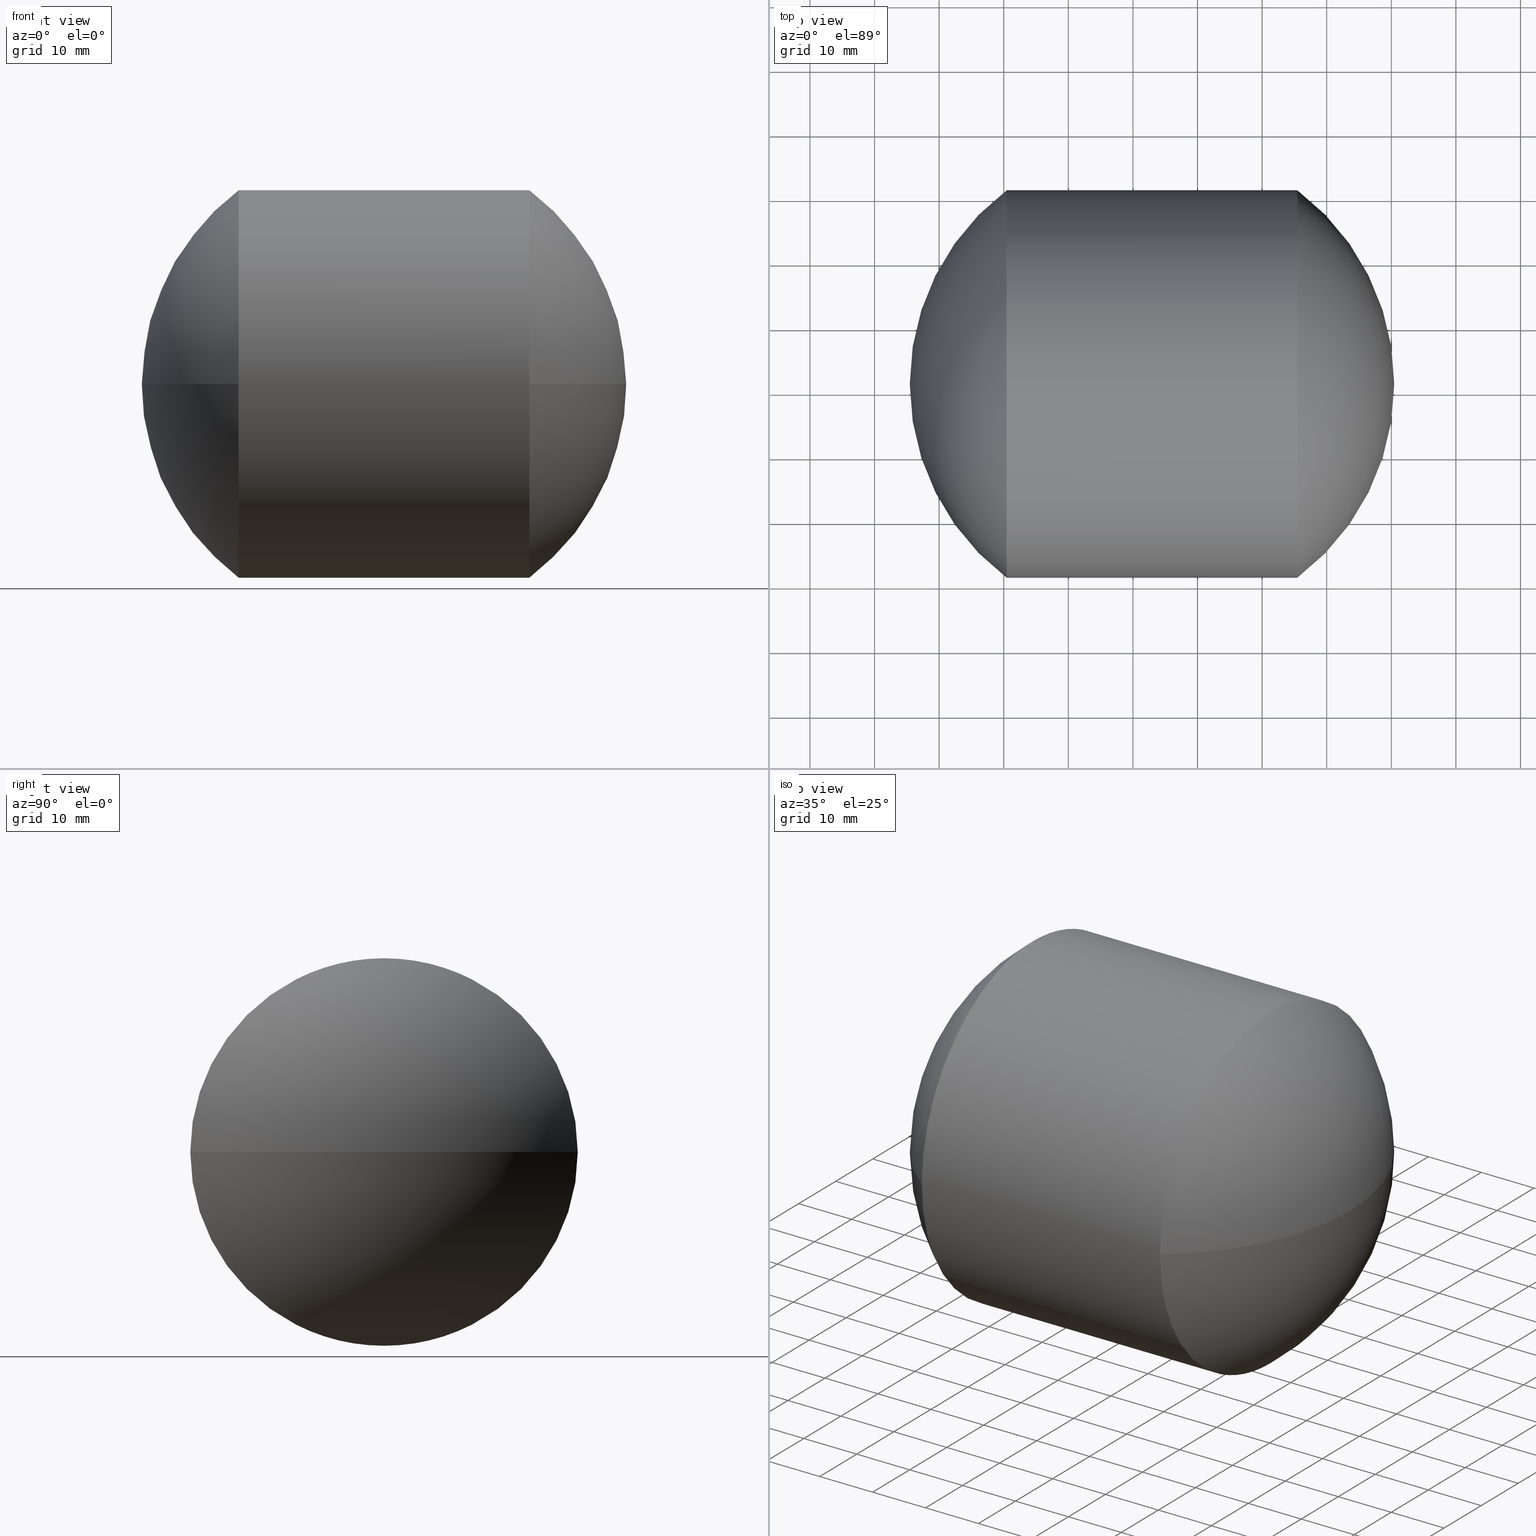
[diagram: canonical four-view strip — front | top / right | iso, engineering-drawing reading convention]
A machine part, canonical four-view strip (front | top / right | iso — engineering-drawing reading convention). The complete STEP part file that produces these views, byte-faithful:
ISO-10303-21;
HEADER;
FILE_DESCRIPTION (( 'STEP AP203' ),
    '1' );
FILE_NAME ('165003.STEP',
    '2019-06-04T02:15:53',
    ( '' ),
    ( '' ),
    'SwSTEP 2.0',
    'SolidWorks 2016',
    '' );
FILE_SCHEMA (( 'CONFIG_CONTROL_DESIGN' ));
ENDSEC;

DATA;
#1 = DIRECTION ( 'NONE',  ( -1.000000000000000000, -0.0000000000000000000, -0.0000000000000000000 ) ) ;
#2 = PRODUCT_DEFINITION_FORMATION_WITH_SPECIFIED_SOURCE ( '�κ�', '', #93, .NOT_KNOWN. ) ;
#3 = PERSON_AND_ORGANIZATION_ROLE ( 'design_owner' ) ;
#4 = PERSON_AND_ORGANIZATION_ROLE ( 'creator' ) ;
#5 = ADVANCED_FACE ( 'NONE', ( #49 ), #316, .T. ) ;
#6 = AXIS2_PLACEMENT_3D ( 'NONE', #30, #64, #172 ) ;
#7 = CARTESIAN_POINT ( 'NONE',  ( 3432.954240111852900, 1941.195797396160300, 0.0000000000000000000 ) ) ;
#8 =( LENGTH_UNIT ( ) NAMED_UNIT ( * ) SI_UNIT ( .MILLI., .METRE. ) );
#9 = CARTESIAN_POINT ( 'NONE',  ( 3432.954240111852900, 1941.195797396160300, 0.0000000000000000000 ) ) ;
#10 = COORDINATED_UNIVERSAL_TIME_OFFSET ( 8, 0, .AHEAD. ) ;
#11 = DATE_AND_TIME ( #337, #133 ) ;
#12 = CC_DESIGN_APPROVAL ( #207, ( #85 ) ) ;
#13 = DIRECTION ( 'NONE',  ( 0.0000000000000000000, 0.0000000000000000000, 1.000000000000000000 ) ) ;
#14 = AXIS2_PLACEMENT_3D ( 'NONE', #259, #210, #273 ) ;
#15 = COORDINATED_UNIVERSAL_TIME_OFFSET ( 8, 0, .AHEAD. ) ;
#16 = EDGE_CURVE ( 'NONE', #103, #60, #129, .T. ) ;
#17 = VERTEX_POINT ( 'NONE', #135 ) ;
#18 = ORIENTED_EDGE ( 'NONE', *, *, #190, .F. ) ;
#19 = COORDINATED_UNIVERSAL_TIME_OFFSET ( 8, 0, .AHEAD. ) ;
#20 = CC_DESIGN_DATE_AND_TIME_ASSIGNMENT ( #44, #29, ( #85 ) ) ;
#21 = EDGE_LOOP ( 'NONE', ( #310, #291, #215, #55 ) ) ;
#22 = DATE_AND_TIME ( #109, #223 ) ;
#23 = LOCAL_TIME ( 10, 15, 53.00000000000000000, #292 ) ;
#24 = CARTESIAN_POINT ( 'NONE',  ( 3410.456490111853300, 1941.195797396160300, -29.99699999999982900 ) ) ;
#25 = CIRCLE ( 'NONE', #48, 29.99700000001004300 ) ;
#26 = CARTESIAN_POINT ( 'NONE',  ( 3389.118758004791700, 1941.195797396160300, 29.99700000000493800 ) ) ;
#27 = APPROVAL_DATE_TIME ( #154, #188 ) ;
#28 = APPROVAL ( #274, 'δָ��' ) ;
#29 = DATE_TIME_ROLE ( 'classification_date' ) ;
#30 = CARTESIAN_POINT ( 'NONE',  ( 3410.456490111853300, 1941.195797396160300, 0.0000000000000000000 ) ) ;
#31 =( NAMED_UNIT ( * ) PLANE_ANGLE_UNIT ( ) SI_UNIT ( $, .RADIAN. ) );
#32 = CARTESIAN_POINT ( 'NONE',  ( 3432.954240111852900, 1941.195797396160300, 0.0000000000000000000 ) ) ;
#33 = CARTESIAN_POINT ( 'NONE',  ( 3455.451990111839700, 1941.195797396160300, 0.0000000000000000000 ) ) ;
#34 = DIRECTION ( 'NONE',  ( -0.0000000000000000000, 0.0000000000000000000, -1.000000000000000000 ) ) ;
#35 = ADVANCED_FACE ( 'NONE', ( #158 ), #104, .T. ) ;
#36 = PERSON_AND_ORGANIZATION_ROLE ( 'classification_officer' ) ;
#37 = DATE_TIME_ROLE ( 'creation_date' ) ;
#38 = ORIENTED_EDGE ( 'NONE', *, *, #208, .T. ) ;
#39 = DIRECTION ( 'NONE',  ( 0.0000000000000000000, 1.224646799147353200E-016, -1.000000000000000000 ) ) ;
#40 = VECTOR ( 'NONE', #1, 1000.000000000000000 ) ;
#41 = DESIGN_CONTEXT ( 'detailed design', #42, 'design' ) ;
#42 = APPLICATION_CONTEXT ( 'configuration controlled 3d designs of mechanical parts and assemblies' ) ;
#43 = PERSON_AND_ORGANIZATION ( #67, #224 ) ;
#44 = DATE_AND_TIME ( #256, #317 ) ;
#45 = DIRECTION ( 'NONE',  ( 0.0000000000000000000, 0.0000000000000000000, 1.000000000000000000 ) ) ;
#46 = ORIENTED_EDGE ( 'NONE', *, *, #107, .T. ) ;
#47 = CC_DESIGN_PERSON_AND_ORGANIZATION_ASSIGNMENT ( #58, #88, ( #85 ) ) ;
#48 = AXIS2_PLACEMENT_3D ( 'NONE', #290, #341, #239 ) ;
#49 = FACE_OUTER_BOUND ( 'NONE', #236, .T. ) ;
#50 = PERSON_AND_ORGANIZATION ( #67, #224 ) ;
#51 = COORDINATED_UNIVERSAL_TIME_OFFSET ( 8, 0, .AHEAD. ) ;
#52 = CC_DESIGN_PERSON_AND_ORGANIZATION_ASSIGNMENT ( #313, #36, ( #338 ) ) ;
#53 = ORIENTED_EDGE ( 'NONE', *, *, #165, .T. ) ;
#54 = VECTOR ( 'NONE', #320, 1000.000000000000000 ) ;
#55 = ORIENTED_EDGE ( 'NONE', *, *, #111, .F. ) ;
#56 = AXIS2_PLACEMENT_3D ( 'NONE', #255, #185, #257 ) ;
#57 = EDGE_CURVE ( 'NONE', #334, #108, #25, .T. ) ;
#58 = PERSON_AND_ORGANIZATION ( #67, #224 ) ;
#59 = DIRECTION ( 'NONE',  ( -0.0000000000000000000, 0.0000000000000000000, 1.000000000000000000 ) ) ;
#60 = VERTEX_POINT ( 'NONE', #87 ) ;
#61 = DIRECTION ( 'NONE',  ( 0.0000000000000000000, 1.000000000000000000, 1.224646799147354700E-016 ) ) ;
#62 = SHAPE_DEFINITION_REPRESENTATION ( #312, #164 ) ;
#63 = DIRECTION ( 'NONE',  ( 0.0000000000000000000, 0.0000000000000000000, 1.000000000000000000 ) ) ;
#64 = DIRECTION ( 'NONE',  ( -1.000000000000000000, -0.0000000000000000000, -0.0000000000000000000 ) ) ;
#65 = APPROVAL_ROLE ( '' ) ;
#66 = DIRECTION ( 'NONE',  ( -0.0000000000000000000, 0.0000000000000000000, -1.000000000000000000 ) ) ;
#67 = PERSON ( 'δָ��', 'δָ��', 'δָ��', ('δָ��'), ('δָ��'), ('δָ��') ) ;
#68 = MECHANICAL_CONTEXT ( 'NONE', #242, 'mechanical' ) ;
#69 = AXIS2_PLACEMENT_3D ( 'NONE', #80, #59, #193 ) ;
#70 = APPROVAL_ROLE ( '' ) ;
#71 = PERSON_AND_ORGANIZATION ( #67, #224 ) ;
#72 = DIRECTION ( 'NONE',  ( 0.0000000000000000000, 1.000000000000000000, 1.224646799147350200E-016 ) ) ;
#73 =( NAMED_UNIT ( * ) SI_UNIT ( $, .STERADIAN. ) SOLID_ANGLE_UNIT ( ) );
#74 = CARTESIAN_POINT ( 'NONE',  ( 3410.456490111853300, 1941.195797396160300, 29.99699999999982900 ) ) ;
#75 = APPROVAL ( #230, 'δָ��' ) ;
#76 = AXIS2_PLACEMENT_3D ( 'NONE', #7, #205, #139 ) ;
#77 = APPROVAL_PERSON_ORGANIZATION ( #159, #318, #175 ) ;
#78 = APPROVAL_PERSON_ORGANIZATION ( #147, #270, #65 ) ;
#79 = AXIS2_PLACEMENT_3D ( 'NONE', #238, #225, #61 ) ;
#80 = CARTESIAN_POINT ( 'NONE',  ( 3432.954240111852900, 1941.195797396160300, 0.0000000000000000000 ) ) ;
#81 = CIRCLE ( 'NONE', #218, 29.99700000001004300 ) ;
#82 = CALENDAR_DATE ( 2019, 4, 6 ) ;
#83 = PERSON_AND_ORGANIZATION ( #67, #224 ) ;
#84 = DIRECTION ( 'NONE',  ( -0.0000000000000000000, 0.0000000000000000000, -1.000000000000000000 ) ) ;
#85 = SECURITY_CLASSIFICATION ( '', '', #227 ) ;
#86 = PERSON_AND_ORGANIZATION_ROLE ( 'creator' ) ;
#87 = CARTESIAN_POINT ( 'NONE',  ( 3455.451990111839700, 1971.192797396170400, 0.0000000000000000000 ) ) ;
#88 = PERSON_AND_ORGANIZATION_ROLE ( 'classification_officer' ) ;
#89 = FACE_OUTER_BOUND ( 'NONE', #97, .T. ) ;
#90 = EDGE_LOOP ( 'NONE', ( #271, #209, #53, #187 ) ) ;
#91 = CC_DESIGN_PERSON_AND_ORGANIZATION_ASSIGNMENT ( #194, #345, ( #93 ) ) ;
#92 = DATE_AND_TIME ( #189, #23 ) ;
#93 = PRODUCT ( '165003', '165003', '', ( #68 ) ) ;
#94 = DATE_TIME_ROLE ( 'classification_date' ) ;
#95 = CARTESIAN_POINT ( 'NONE',  ( 3410.456490111853300, 1911.198797396160400, -3.673573003402300800E-015 ) ) ;
#96 = ORIENTED_EDGE ( 'NONE', *, *, #308, .T. ) ;
#97 = EDGE_LOOP ( 'NONE', ( #251, #116, #240, #115, #121, #181 ) ) ;
#98 = VERTEX_POINT ( 'NONE', #24 ) ;
#99 = DATE_AND_TIME ( #263, #311 ) ;
#100 = UNCERTAINTY_MEASURE_WITH_UNIT (LENGTH_MEASURE( 1.000000000000000100E-005 ), #8, 'distance_accuracy_value', 'NONE');
#101 = AXIS2_PLACEMENT_3D ( 'NONE', #33, #237, #174 ) ;
#102 = CIRCLE ( 'NONE', #122, 29.99699999999982900 ) ;
#103 = VERTEX_POINT ( 'NONE', #195 ) ;
#104 = CYLINDRICAL_SURFACE ( 'NONE', #157, 29.99700000000493800 ) ;
#105 = PRODUCT_DEFINITION ( 'δ֪', '', #331, #336 ) ;
#106 = ORIENTED_EDGE ( 'NONE', *, *, #110, .T. ) ;
#107 = EDGE_CURVE ( 'NONE', #330, #167, #136, .T. ) ;
#108 = VERTEX_POINT ( 'NONE', #340 ) ;
#109 = CALENDAR_DATE ( 2019, 4, 6 ) ;
#110 = EDGE_CURVE ( 'NONE', #279, #284, #275, .T. ) ;
#111 = EDGE_CURVE ( 'NONE', #60, #334, #81, .T. ) ;
#112 = DIRECTION ( 'NONE',  ( -1.000000000000000000, -0.0000000000000000000, -0.0000000000000000000 ) ) ;
#113 = PERSON_AND_ORGANIZATION ( #67, #224 ) ;
#114 = COORDINATED_UNIVERSAL_TIME_OFFSET ( 8, 0, .AHEAD. ) ;
#115 = ORIENTED_EDGE ( 'NONE', *, *, #165, .F. ) ;
#116 = ORIENTED_EDGE ( 'NONE', *, *, #339, .T. ) ;
#117 = DIRECTION ( 'NONE',  ( -1.000000000000000000, -0.0000000000000000000, -0.0000000000000000000 ) ) ;
#118 = APPLICATION_PROTOCOL_DEFINITION ( 'international standard', 'config_control_design', 1994, #242 ) ;
#119 = CARTESIAN_POINT ( 'NONE',  ( 3455.451990111839700, 1941.195797396160300, 0.0000000000000000000 ) ) ;
#120 = PERSON_AND_ORGANIZATION_ROLE ( 'creator' ) ;
#121 = ORIENTED_EDGE ( 'NONE', *, *, #110, .F. ) ;
#122 = AXIS2_PLACEMENT_3D ( 'NONE', #304, #306, #153 ) ;
#123 = CARTESIAN_POINT ( 'NONE',  ( 0.0000000000000000000, 0.0000000000000000000, 0.0000000000000000000 ) ) ;
#124 = DIRECTION ( 'NONE',  ( -0.0000000000000000000, 0.0000000000000000000, 1.000000000000000000 ) ) ;
#125 = FACE_OUTER_BOUND ( 'NONE', #288, .T. ) ;
#126 = CC_DESIGN_DATE_AND_TIME_ASSIGNMENT ( #22, #94, ( #338 ) ) ;
#127 = LOCAL_TIME ( 10, 15, 53.00000000000000000, #294 ) ;
#128 = AXIS2_PLACEMENT_3D ( 'NONE', #9, #124, #278 ) ;
#129 = CIRCLE ( 'NONE', #69, 37.49625000000023100 ) ;
#130 = APPROVAL_PERSON_ORGANIZATION ( #305, #207, #173 ) ;
#131 = PERSON_AND_ORGANIZATION ( #67, #224 ) ;
#132 = ORIENTED_EDGE ( 'NONE', *, *, #208, .F. ) ;
#133 = LOCAL_TIME ( 10, 15, 53.00000000000000000, #19 ) ;
#134 = AXIS2_PLACEMENT_3D ( 'NONE', #150, #34, #329 ) ;
#135 = CARTESIAN_POINT ( 'NONE',  ( 3410.456490111853300, 1971.192797396160100, 0.0000000000000000000 ) ) ;
#136 = CIRCLE ( 'NONE', #79, 37.49624999999956300 ) ;
#137 = CC_DESIGN_APPROVAL ( #75, ( #338 ) ) ;
#138 = APPROVAL_STATUS ( 'not_yet_approved' ) ;
#139 = DIRECTION ( 'NONE',  ( 0.0000000000000000000, 1.000000000000000000, 0.0000000000000000000 ) ) ;
#140 = DIRECTION ( 'NONE',  ( 0.0000000000000000000, 1.000000000000000000, 0.0000000000000000000 ) ) ;
#141 = AXIS2_PLACEMENT_3D ( 'NONE', #301, #146, #327 ) ;
#142 = CARTESIAN_POINT ( 'NONE',  ( 3455.451990111839700, 1941.195797396160300, -29.99700000001004300 ) ) ;
#143 = SPHERICAL_SURFACE ( 'NONE', #213, 37.49625000000013800 ) ;
#144 = PRODUCT ( '165003', '165003', '', ( #325 ) ) ;
#145 = LOCAL_TIME ( 10, 15, 53.00000000000000000, #184 ) ;
#146 = DIRECTION ( 'NONE',  ( 0.0000000000000000000, 0.0000000000000000000, 1.000000000000000000 ) ) ;
#147 = PERSON_AND_ORGANIZATION ( #67, #224 ) ;
#148 = ADVANCED_FACE ( 'NONE', ( #182 ), #143, .T. ) ;
#149 = DIRECTION ( 'NONE',  ( 1.000000000000000000, 0.0000000000000000000, 0.0000000000000000000 ) ) ;
#150 = CARTESIAN_POINT ( 'NONE',  ( 3432.954240111852900, 1941.195797396160300, 0.0000000000000000000 ) ) ;
#151 = CARTESIAN_POINT ( 'NONE',  ( 3455.451990111839700, 1941.195797396160300, 29.99700000001004300 ) ) ;
#152 = CIRCLE ( 'NONE', #162, 29.99699999999982900 ) ;
#153 = DIRECTION ( 'NONE',  ( 0.0000000000000000000, 0.0000000000000000000, 1.000000000000000000 ) ) ;
#154 = DATE_AND_TIME ( #198, #266 ) ;
#155 = LINE ( 'NONE', #204, #54 ) ;
#156 = ORIENTED_EDGE ( 'NONE', *, *, #16, .T. ) ;
#157 = AXIS2_PLACEMENT_3D ( 'NONE', #342, #112, #166 ) ;
#158 = FACE_OUTER_BOUND ( 'NONE', #309, .T. ) ;
#159 = PERSON_AND_ORGANIZATION ( #67, #224 ) ;
#160 = CC_DESIGN_SECURITY_CLASSIFICATION ( #338, ( #331 ) ) ;
#161 = FACE_OUTER_BOUND ( 'NONE', #90, .T. ) ;
#162 = AXIS2_PLACEMENT_3D ( 'NONE', #244, #117, #13 ) ;
#163 = PRODUCT_DEFINITION_SHAPE ( 'NONE', 'NONE',  #268 ) ;
#164 = ADVANCED_BREP_SHAPE_REPRESENTATION ( '165003', ( #229, #141 ), #179 ) ;
#165 = EDGE_CURVE ( 'NONE', #284, #17, #152, .T. ) ;
#166 = DIRECTION ( 'NONE',  ( 0.0000000000000000000, 0.0000000000000000000, 1.000000000000000000 ) ) ;
#167 = VERTEX_POINT ( 'NONE', #183 ) ;
#168 = APPROVAL_DATE_TIME ( #99, #207 ) ;
#169 = EDGE_CURVE ( 'NONE', #103, #108, #285, .T. ) ;
#170 = DIRECTION ( 'NONE',  ( 0.0000000000000000000, 1.000000000000000000, 0.0000000000000000000 ) ) ;
#171 = PERSON_AND_ORGANIZATION_ROLE ( 'creator' ) ;
#172 = DIRECTION ( 'NONE',  ( 0.0000000000000000000, 0.0000000000000000000, 1.000000000000000000 ) ) ;
#173 = APPROVAL_ROLE ( '' ) ;
#174 = DIRECTION ( 'NONE',  ( 0.0000000000000000000, 0.0000000000000000000, 1.000000000000000000 ) ) ;
#175 = APPROVAL_ROLE ( '' ) ;
#176 = APPROVAL_ROLE ( '' ) ;
#177 = ADVANCED_FACE ( 'NONE', ( #161 ), #221, .T. ) ;
#178 = CIRCLE ( 'NONE', #6, 29.99699999999982900 ) ;
#179 =( GEOMETRIC_REPRESENTATION_CONTEXT ( 3 ) GLOBAL_UNCERTAINTY_ASSIGNED_CONTEXT ( ( #100 ) ) GLOBAL_UNIT_ASSIGNED_CONTEXT ( ( #8, #31, #73 ) ) REPRESENTATION_CONTEXT ( 'NONE', 'WORKASPACE' ) );
#180 = APPROVAL_STATUS ( 'not_yet_approved' ) ;
#181 = ORIENTED_EDGE ( 'NONE', *, *, #252, .T. ) ;
#182 = FACE_OUTER_BOUND ( 'NONE', #21, .T. ) ;
#183 = CARTESIAN_POINT ( 'NONE',  ( 3395.457990111852700, 1941.195797396160300, 0.0000000000000000000 ) ) ;
#184 = COORDINATED_UNIVERSAL_TIME_OFFSET ( 8, 0, .AHEAD. ) ;
#185 = DIRECTION ( 'NONE',  ( -1.000000000000000000, -0.0000000000000000000, -0.0000000000000000000 ) ) ;
#186 = CC_DESIGN_PERSON_AND_ORGANIZATION_ASSIGNMENT ( #113, #4, ( #331 ) ) ;
#187 = ORIENTED_EDGE ( 'NONE', *, *, #319, .T. ) ;
#188 = APPROVAL ( #180, 'δָ��' ) ;
#189 = CALENDAR_DATE ( 2019, 4, 6 ) ;
#190 = EDGE_CURVE ( 'NONE', #330, #284, #178, .T. ) ;
#191 = AXIS2_PLACEMENT_3D ( 'NONE', #123, #63, #149 ) ;
#192 = DATE_AND_TIME ( #315, #277 ) ;
#193 = DIRECTION ( 'NONE',  ( 1.000000000000000000, 0.0000000000000000000, 0.0000000000000000000 ) ) ;
#194 = PERSON_AND_ORGANIZATION ( #67, #224 ) ;
#195 = CARTESIAN_POINT ( 'NONE',  ( 3470.450490111853000, 1941.195797396160300, 0.0000000000000000000 ) ) ;
#196 = ORIENTED_EDGE ( 'NONE', *, *, #269, .F. ) ;
#197 = PRODUCT_RELATED_PRODUCT_CATEGORY ( 'detail', '', ( #144 ) ) ;
#198 = CALENDAR_DATE ( 2019, 4, 6 ) ;
#199 = PERSON_AND_ORGANIZATION_ROLE ( 'design_supplier' ) ;
#200 = APPLICATION_CONTEXT ( 'configuration controlled 3d designs of mechanical parts and assemblies' ) ;
#201 = DIRECTION ( 'NONE',  ( 0.0000000000000000000, 0.0000000000000000000, 1.000000000000000000 ) ) ;
#202 = CC_DESIGN_PERSON_AND_ORGANIZATION_ASSIGNMENT ( #83, #86, ( #268 ) ) ;
#203 = PERSON_AND_ORGANIZATION_ROLE ( 'design_supplier' ) ;
#204 = CARTESIAN_POINT ( 'NONE',  ( 3389.118758004791700, 1941.195797396160300, -29.99700000000493800 ) ) ;
#205 = DIRECTION ( 'NONE',  ( -0.0000000000000000000, 0.0000000000000000000, -1.000000000000000000 ) ) ;
#206 = DIRECTION ( 'NONE',  ( -1.000000000000000000, -0.0000000000000000000, -0.0000000000000000000 ) ) ;
#207 = APPROVAL ( #226, 'δָ��' ) ;
#208 = EDGE_CURVE ( 'NONE', #108, #279, #262, .T. ) ;
#209 = ORIENTED_EDGE ( 'NONE', *, *, #190, .T. ) ;
#210 = DIRECTION ( 'NONE',  ( -1.000000000000000000, -0.0000000000000000000, -0.0000000000000000000 ) ) ;
#211 = SPHERICAL_SURFACE ( 'NONE', #76, 37.49625000000013800 ) ;
#212 = APPROVAL_DATE_TIME ( #192, #318 ) ;
#213 = AXIS2_PLACEMENT_3D ( 'NONE', #32, #66, #140 ) ;
#214 = ORIENTED_EDGE ( 'NONE', *, *, #169, .F. ) ;
#215 = ORIENTED_EDGE ( 'NONE', *, *, #57, .F. ) ;
#216 = CC_DESIGN_PERSON_AND_ORGANIZATION_ASSIGNMENT ( #343, #120, ( #105 ) ) ;
#217 = ORIENTED_EDGE ( 'NONE', *, *, #339, .F. ) ;
#218 = AXIS2_PLACEMENT_3D ( 'NONE', #119, #296, #201 ) ;
#219 = APPROVAL_PERSON_ORGANIZATION ( #297, #75, #70 ) ;
#220 = APPROVAL_PERSON_ORGANIZATION ( #282, #28, #176 ) ;
#221 = SPHERICAL_SURFACE ( 'NONE', #134, 37.49624999999960600 ) ;
#222 = PRODUCT_RELATED_PRODUCT_CATEGORY ( 'detail', '', ( #93 ) ) ;
#223 = LOCAL_TIME ( 10, 15, 53.00000000000000000, #287 ) ;
#224 = ORGANIZATION ( 'δָ��', 'δָ��', '' ) ;
#225 = DIRECTION ( 'NONE',  ( 0.0000000000000000000, 1.224646799147353200E-016, -1.000000000000000000 ) ) ;
#226 = APPROVAL_STATUS ( 'not_yet_approved' ) ;
#227 = SECURITY_CLASSIFICATION_LEVEL ( 'unclassified' ) ;
#228 = ORIENTED_EDGE ( 'NONE', *, *, #252, .F. ) ;
#229 = MANIFOLD_SOLID_BREP ( '��ת1', #333 ) ;
#230 = APPROVAL_STATUS ( 'not_yet_approved' ) ;
#231 = CARTESIAN_POINT ( 'NONE',  ( 3410.456490111853300, 1941.195797396160300, 0.0000000000000000000 ) ) ;
#232 = CC_DESIGN_PERSON_AND_ORGANIZATION_ASSIGNMENT ( #71, #199, ( #2 ) ) ;
#233 = AXIS2_PLACEMENT_3D ( 'NONE', #231, #206, #45 ) ;
#234 = ORIENTED_EDGE ( 'NONE', *, *, #319, .F. ) ;
#235 = CC_DESIGN_PERSON_AND_ORGANIZATION_ASSIGNMENT ( #50, #3, ( #144 ) ) ;
#236 = EDGE_LOOP ( 'NONE', ( #96, #241, #46, #234 ) ) ;
#237 = DIRECTION ( 'NONE',  ( -1.000000000000000000, -0.0000000000000000000, -0.0000000000000000000 ) ) ;
#238 = CARTESIAN_POINT ( 'NONE',  ( 3432.954240111852900, 1941.195797396160300, 0.0000000000000000000 ) ) ;
#239 = DIRECTION ( 'NONE',  ( 0.0000000000000000000, 0.0000000000000000000, 1.000000000000000000 ) ) ;
#240 = ORIENTED_EDGE ( 'NONE', *, *, #308, .F. ) ;
#241 = ORIENTED_EDGE ( 'NONE', *, *, #269, .T. ) ;
#242 = APPLICATION_CONTEXT ( 'configuration controlled 3d designs of mechanical parts and assemblies' ) ;
#243 = LOCAL_TIME ( 10, 15, 53.00000000000000000, #15 ) ;
#244 = CARTESIAN_POINT ( 'NONE',  ( 3410.456490111853300, 1941.195797396160300, 0.0000000000000000000 ) ) ;
#245 = APPLICATION_PROTOCOL_DEFINITION ( 'international standard', 'config_control_design', 1994, #200 ) ;
#246 = CC_DESIGN_DATE_AND_TIME_ASSIGNMENT ( #283, #37, ( #268 ) ) ;
#247 = SECURITY_CLASSIFICATION_LEVEL ( 'unclassified' ) ;
#248 = CARTESIAN_POINT ( 'NONE',  ( 3432.954240111852900, 1941.195797396160300, 0.0000000000000000000 ) ) ;
#249 = CIRCLE ( 'NONE', #101, 29.99700000001004300 ) ;
#250 = APPLICATION_CONTEXT ( 'configuration controlled 3d designs of mechanical parts and assemblies' ) ;
#251 = ORIENTED_EDGE ( 'NONE', *, *, #111, .T. ) ;
#252 = EDGE_CURVE ( 'NONE', #279, #60, #249, .T. ) ;
#253 = CALENDAR_DATE ( 2019, 4, 6 ) ;
#254 = DATE_AND_TIME ( #82, #145 ) ;
#255 = CARTESIAN_POINT ( 'NONE',  ( 3389.118758004791700, 1941.195797396160300, 0.0000000000000000000 ) ) ;
#256 = CALENDAR_DATE ( 2019, 4, 6 ) ;
#257 = DIRECTION ( 'NONE',  ( 0.0000000000000000000, 0.0000000000000000000, 1.000000000000000000 ) ) ;
#258 = CC_DESIGN_PERSON_AND_ORGANIZATION_ASSIGNMENT ( #328, #171, ( #2 ) ) ;
#259 = CARTESIAN_POINT ( 'NONE',  ( 3455.451990111839700, 1941.195797396160300, 0.0000000000000000000 ) ) ;
#260 = DATE_AND_TIME ( #253, #243 ) ;
#261 = CALENDAR_DATE ( 2019, 4, 6 ) ;
#262 = CIRCLE ( 'NONE', #14, 29.99700000001004300 ) ;
#263 = CALENDAR_DATE ( 2019, 4, 6 ) ;
#264 = APPROVAL_PERSON_ORGANIZATION ( #131, #188, #272 ) ;
#265 = CYLINDRICAL_SURFACE ( 'NONE', #56, 29.99700000000493800 ) ;
#266 = LOCAL_TIME ( 10, 15, 53.00000000000000000, #114 ) ;
#267 = CC_DESIGN_DATE_AND_TIME_ASSIGNMENT ( #254, #299, ( #105 ) ) ;
#268 = PRODUCT_DEFINITION ( 'δ֪', '', #2, #41 ) ;
#269 = EDGE_CURVE ( 'NONE', #98, #330, #102, .T. ) ;
#270 = APPROVAL ( #138, 'δָ��' ) ;
#271 = ORIENTED_EDGE ( 'NONE', *, *, #107, .F. ) ;
#272 = APPROVAL_ROLE ( '' ) ;
#273 = DIRECTION ( 'NONE',  ( 0.0000000000000000000, 0.0000000000000000000, 1.000000000000000000 ) ) ;
#274 = APPROVAL_STATUS ( 'not_yet_approved' ) ;
#275 = LINE ( 'NONE', #26, #40 ) ;
#276 = APPLICATION_PROTOCOL_DEFINITION ( 'international standard', 'config_control_design', 1994, #250 ) ;
#277 = LOCAL_TIME ( 10, 15, 53.00000000000000000, #10 ) ;
#278 = DIRECTION ( 'NONE',  ( 1.000000000000000000, 0.0000000000000000000, 0.0000000000000000000 ) ) ;
#279 = VERTEX_POINT ( 'NONE', #151 ) ;
#280 = CC_DESIGN_SECURITY_CLASSIFICATION ( #85, ( #2 ) ) ;
#281 = AXIS2_PLACEMENT_3D ( 'NONE', #293, #84, #170 ) ;
#282 = PERSON_AND_ORGANIZATION ( #67, #224 ) ;
#283 = DATE_AND_TIME ( #261, #127 ) ;
#284 = VERTEX_POINT ( 'NONE', #74 ) ;
#285 = CIRCLE ( 'NONE', #300, 37.49625000000023100 ) ;
#286 = CC_DESIGN_APPROVAL ( #28, ( #105 ) ) ;
#287 = COORDINATED_UNIVERSAL_TIME_OFFSET ( 8, 0, .AHEAD. ) ;
#288 = EDGE_LOOP ( 'NONE', ( #214, #156, #228, #132 ) ) ;
#289 = APPROVAL_DATE_TIME ( #260, #75 ) ;
#290 = CARTESIAN_POINT ( 'NONE',  ( 3455.451990111839700, 1941.195797396160300, 0.0000000000000000000 ) ) ;
#291 = ORIENTED_EDGE ( 'NONE', *, *, #169, .T. ) ;
#292 = COORDINATED_UNIVERSAL_TIME_OFFSET ( 8, 0, .AHEAD. ) ;
#293 = CARTESIAN_POINT ( 'NONE',  ( 3432.954240111852900, 1941.195797396160300, 0.0000000000000000000 ) ) ;
#294 = COORDINATED_UNIVERSAL_TIME_OFFSET ( 8, 0, .AHEAD. ) ;
#295 = CC_DESIGN_APPROVAL ( #318, ( #331 ) ) ;
#296 = DIRECTION ( 'NONE',  ( -1.000000000000000000, -0.0000000000000000000, -0.0000000000000000000 ) ) ;
#297 = PERSON_AND_ORGANIZATION ( #67, #224 ) ;
#298 = APPROVAL_DATE_TIME ( #92, #28 ) ;
#299 = DATE_TIME_ROLE ( 'creation_date' ) ;
#300 = AXIS2_PLACEMENT_3D ( 'NONE', #248, #39, #72 ) ;
#301 = CARTESIAN_POINT ( 'NONE',  ( 0.0000000000000000000, 0.0000000000000000000, 0.0000000000000000000 ) ) ;
#302 = APPLICATION_PROTOCOL_DEFINITION ( 'international standard', 'config_control_design', 1994, #42 ) ;
#303 = ORIENTED_EDGE ( 'NONE', *, *, #57, .T. ) ;
#304 = CARTESIAN_POINT ( 'NONE',  ( 3410.456490111853300, 1941.195797396160300, 0.0000000000000000000 ) ) ;
#305 = PERSON_AND_ORGANIZATION ( #67, #224 ) ;
#306 = DIRECTION ( 'NONE',  ( -1.000000000000000000, -0.0000000000000000000, -0.0000000000000000000 ) ) ;
#307 = CC_DESIGN_APPROVAL ( #270, ( #2 ) ) ;
#308 = EDGE_CURVE ( 'NONE', #17, #98, #332, .T. ) ;
#309 = EDGE_LOOP ( 'NONE', ( #217, #303, #38, #106, #18, #196 ) ) ;
#310 = ORIENTED_EDGE ( 'NONE', *, *, #16, .F. ) ;
#311 = LOCAL_TIME ( 10, 15, 53.00000000000000000, #326 ) ;
#312 = PRODUCT_DEFINITION_SHAPE ( 'NONE', 'NONE',  #105 ) ;
#313 = PERSON_AND_ORGANIZATION ( #67, #224 ) ;
#314 = CC_DESIGN_PERSON_AND_ORGANIZATION_ASSIGNMENT ( #43, #203, ( #331 ) ) ;
#315 = CALENDAR_DATE ( 2019, 4, 6 ) ;
#316 = SPHERICAL_SURFACE ( 'NONE', #281, 37.49624999999960600 ) ;
#317 = LOCAL_TIME ( 10, 15, 53.00000000000000000, #51 ) ;
#318 = APPROVAL ( #322, 'δָ��' ) ;
#319 = EDGE_CURVE ( 'NONE', #17, #167, #323, .T. ) ;
#320 = DIRECTION ( 'NONE',  ( -1.000000000000000000, -0.0000000000000000000, -0.0000000000000000000 ) ) ;
#321 = ADVANCED_FACE ( 'NONE', ( #89 ), #265, .T. ) ;
#322 = APPROVAL_STATUS ( 'not_yet_approved' ) ;
#323 = CIRCLE ( 'NONE', #128, 37.49624999999979000 ) ;
#324 = ADVANCED_FACE ( 'NONE', ( #125 ), #211, .T. ) ;
#325 = MECHANICAL_CONTEXT ( 'NONE', #250, 'mechanical' ) ;
#326 = COORDINATED_UNIVERSAL_TIME_OFFSET ( 8, 0, .AHEAD. ) ;
#327 = DIRECTION ( 'NONE',  ( 1.000000000000000000, 0.0000000000000000000, 0.0000000000000000000 ) ) ;
#328 = PERSON_AND_ORGANIZATION ( #67, #224 ) ;
#329 = DIRECTION ( 'NONE',  ( 0.0000000000000000000, 1.000000000000000000, 0.0000000000000000000 ) ) ;
#330 = VERTEX_POINT ( 'NONE', #95 ) ;
#331 = PRODUCT_DEFINITION_FORMATION_WITH_SPECIFIED_SOURCE ( '�κ�', '', #144, .NOT_KNOWN. ) ;
#332 = CIRCLE ( 'NONE', #233, 29.99699999999982900 ) ;
#333 = CLOSED_SHELL ( 'NONE', ( #321, #148, #5, #177, #324, #35 ) ) ;
#334 = VERTEX_POINT ( 'NONE', #142 ) ;
#335 = CC_DESIGN_APPROVAL ( #188, ( #268 ) ) ;
#336 = DESIGN_CONTEXT ( 'detailed design', #200, 'design' ) ;
#337 = CALENDAR_DATE ( 2019, 4, 6 ) ;
#338 = SECURITY_CLASSIFICATION ( '', '', #247 ) ;
#339 = EDGE_CURVE ( 'NONE', #334, #98, #155, .T. ) ;
#340 = CARTESIAN_POINT ( 'NONE',  ( 3455.451990111839700, 1911.198797396150200, -3.673573003403538500E-015 ) ) ;
#341 = DIRECTION ( 'NONE',  ( -1.000000000000000000, -0.0000000000000000000, -0.0000000000000000000 ) ) ;
#342 = CARTESIAN_POINT ( 'NONE',  ( 3389.118758004791700, 1941.195797396160300, 0.0000000000000000000 ) ) ;
#343 = PERSON_AND_ORGANIZATION ( #67, #224 ) ;
#344 = APPROVAL_DATE_TIME ( #11, #270 ) ;
#345 = PERSON_AND_ORGANIZATION_ROLE ( 'design_owner' ) ;
ENDSEC;
END-ISO-10303-21;
